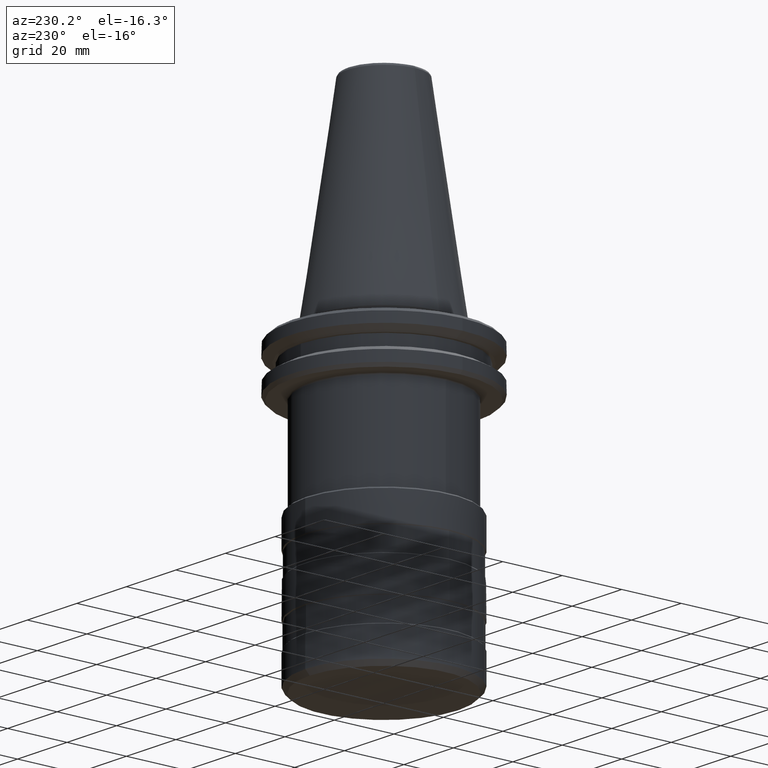
[diagram: clean part render]
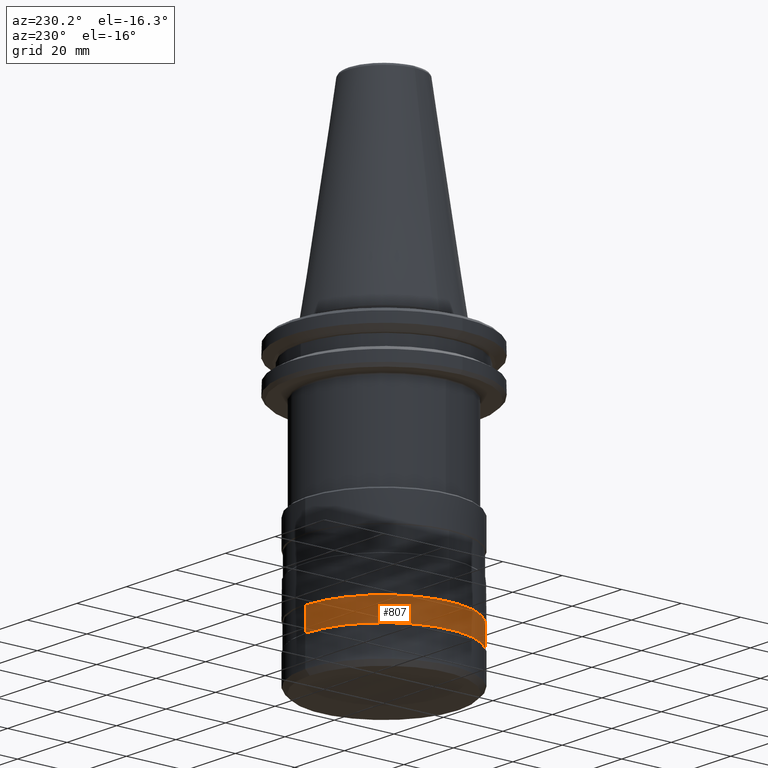
[diagram: same view with one face highlighted and labeled with its STEP entity id]
A machine part, auxiliary view. The second image highlights one B-rep face of the part: STEP entity #807.
In plain terms, the highlighted cylindrical surface (partial cylindrical patch) has radius 26.25 mm, axis along (0, -0, 1).
Its self-contained STEP definition (entity closure, byte-faithful):
#14 = DIRECTION ( 'NONE',  ( 0.0000000000000000000, -2.643388153869420800E-016, 1.000000000000000000 ) ) ;
#21 = CARTESIAN_POINT ( 'NONE',  ( -2.142588492777186500E-033, 26.25000000000000400, -86.75000000000000000 ) ) ;
#92 = ORIENTED_EDGE ( 'NONE', *, *, #177, .T. ) ;
#97 = CARTESIAN_POINT ( 'NONE',  ( 0.0000000000000000000, 0.0000000000000000000, -86.75000000000002800 ) ) ;
#177 = EDGE_CURVE ( 'NONE', #1400, #823, #657, .T. ) ;
#189 = EDGE_CURVE ( 'NONE', #622, #823, #957, .T. ) ;
#241 = AXIS2_PLACEMENT_3D ( 'NONE', #1065, #787, #798 ) ;
#299 = DIRECTION ( 'NONE',  ( 0.0000000000000000000, -2.643388153869420800E-016, 1.000000000000000000 ) ) ;
#305 = DIRECTION ( 'NONE',  ( 0.0000000000000000000, -1.000000000000000000, -5.286776307738838600E-016 ) ) ;
#419 = AXIS2_PLACEMENT_3D ( 'NONE', #454, #299, #305 ) ;
#454 = CARTESIAN_POINT ( 'NONE',  ( 0.0000000000000000000, -4.622231866529366000E-030, -79.24999999999998600 ) ) ;
#484 = CARTESIAN_POINT ( 'NONE',  ( 0.0000000000000000000, -26.25000000000001100, -79.25000000000000000 ) ) ;
#589 = CARTESIAN_POINT ( 'NONE',  ( 0.0000000000000000000, -26.25000000000000000, -86.75000000000002800 ) ) ;
#606 = FACE_OUTER_BOUND ( 'NONE', #1142, .T. ) ;
#622 = VERTEX_POINT ( 'NONE', #1431 ) ;
#646 = EDGE_CURVE ( 'NONE', #911, #1400, #1489, .T. ) ;
#657 = LINE ( 'NONE', #589, #1366 ) ;
#729 = DIRECTION ( 'NONE',  ( 0.0000000000000000000, -2.643388153869420800E-016, 1.000000000000000000 ) ) ;
#787 = DIRECTION ( 'NONE',  ( 0.0000000000000000000, -2.643388153869420800E-016, 1.000000000000000000 ) ) ;
#798 = DIRECTION ( 'NONE',  ( 0.0000000000000000000, -1.000000000000000000, -5.286776307738840600E-016 ) ) ;
#807 = ADVANCED_FACE ( 'NONE', ( #606 ), #1627, .T. ) ;
#811 = ORIENTED_EDGE ( 'NONE', *, *, #189, .F. ) ;
#823 = VERTEX_POINT ( 'NONE', #484 ) ;
#849 = ORIENTED_EDGE ( 'NONE', *, *, #646, .T. ) ;
#911 = VERTEX_POINT ( 'NONE', #21 ) ;
#927 = AXIS2_PLACEMENT_3D ( 'NONE', #97, #14, #947 ) ;
#947 = DIRECTION ( 'NONE',  ( 0.0000000000000000000, -1.000000000000000000, -5.286776307738840600E-016 ) ) ;
#952 = VECTOR ( 'NONE', #729, 1000.000000000000000 ) ;
#957 = CIRCLE ( 'NONE', #419, 26.25000000000001100 ) ;
#1065 = CARTESIAN_POINT ( 'NONE',  ( 0.0000000000000000000, -5.502656983963531900E-030, -86.75000000000000000 ) ) ;
#1142 = EDGE_LOOP ( 'NONE', ( #1287, #849, #92, #811 ) ) ;
#1287 = ORIENTED_EDGE ( 'NONE', *, *, #1764, .F. ) ;
#1359 = LINE ( 'NONE', #1547, #952 ) ;
#1366 = VECTOR ( 'NONE', #1492, 1000.000000000000000 ) ;
#1400 = VERTEX_POINT ( 'NONE', #1720 ) ;
#1431 = CARTESIAN_POINT ( 'NONE',  ( 3.214697847761803600E-015, 26.25000000000000700, -79.24999999999998600 ) ) ;
#1489 = CIRCLE ( 'NONE', #241, 26.25000000000000000 ) ;
#1492 = DIRECTION ( 'NONE',  ( 0.0000000000000000000, -2.643388153869420800E-016, 1.000000000000000000 ) ) ;
#1547 = CARTESIAN_POINT ( 'NONE',  ( 3.214697847761802000E-015, 26.25000000000000000, -86.75000000000001400 ) ) ;
#1627 = CYLINDRICAL_SURFACE ( 'NONE', #927, 26.25000000000000000 ) ;
#1720 = CARTESIAN_POINT ( 'NONE',  ( 3.230005932751143900E-015, -26.25000000000000400, -86.75000000000000000 ) ) ;
#1764 = EDGE_CURVE ( 'NONE', #911, #622, #1359, .T. ) ;